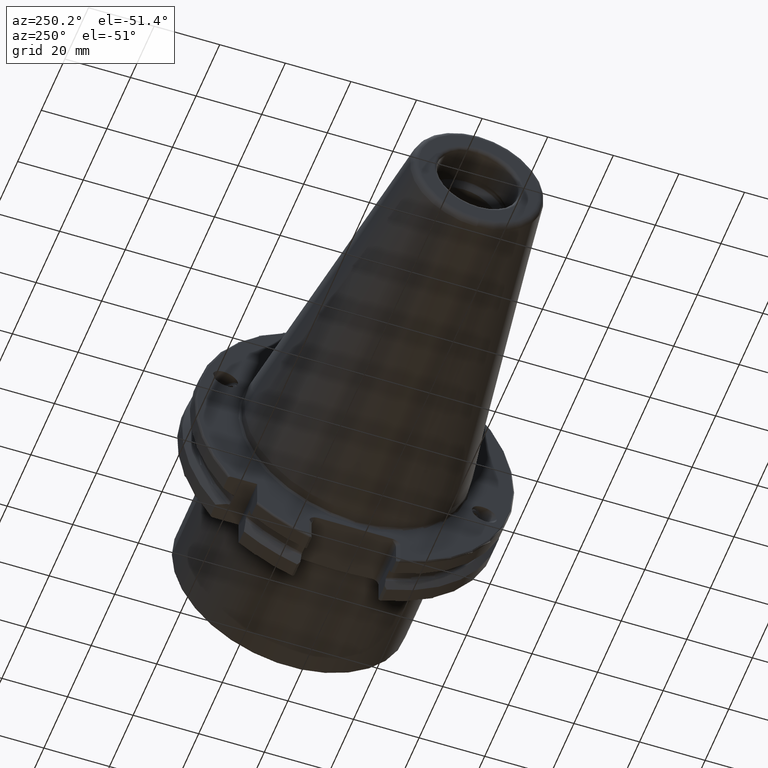
[diagram: clean part render]
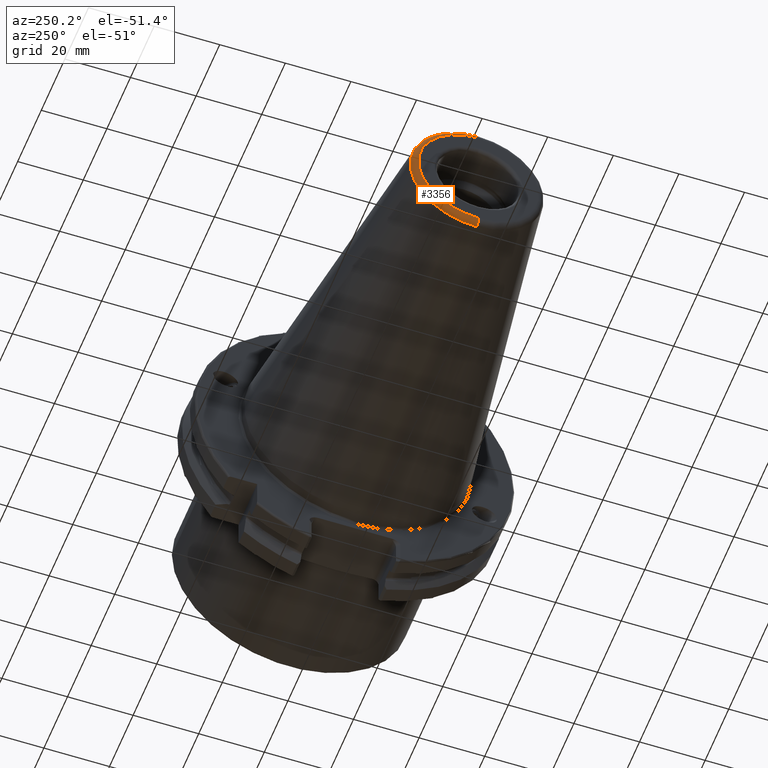
[diagram: same view with one face highlighted and labeled with its STEP entity id]
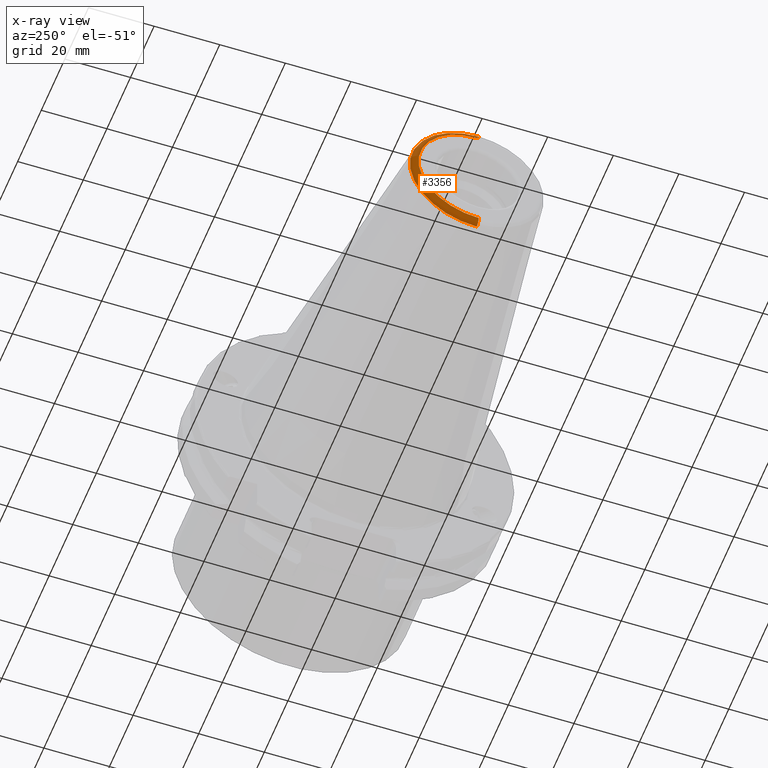
[diagram: x-ray of the same camera — body ghosted, the highlighted face saturated]
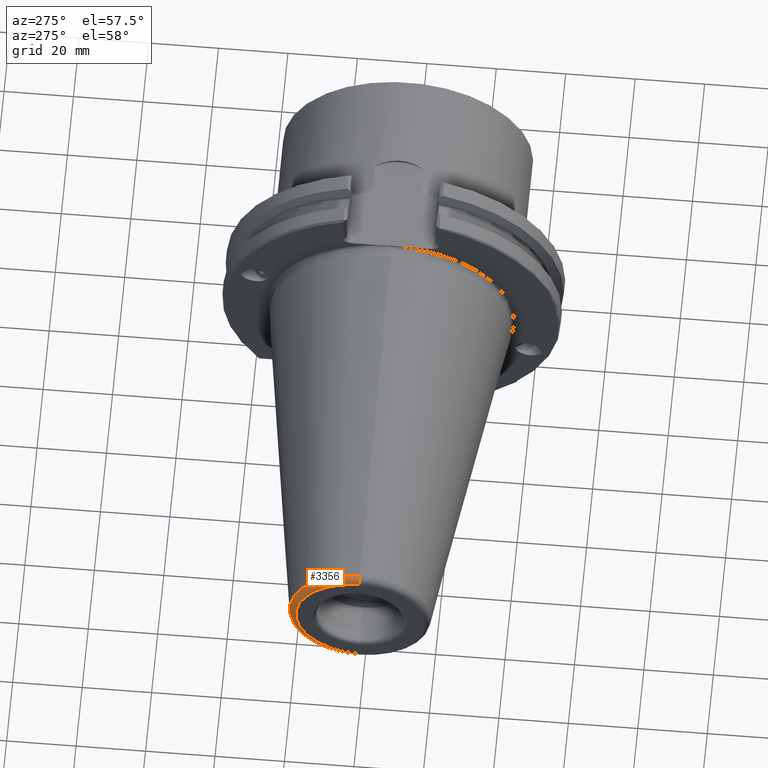
[diagram: same view with one face highlighted and labeled with its STEP entity id]
A machine part, auxiliary view. The second image highlights one B-rep face of the part: STEP entity #3356.
The next image is the same camera in x-ray: the body ghosted, the highlighted face saturated — about 0% of this face is hidden behind the body in this view.
A second angle (auxiliary view) of the same face is appended — the face is thin or edge-on in the first view.
In plain terms, the highlighted toroidal blend (fillet) surface has major radius 18.3788 mm and minor (blend) radius 2 mm.
Its self-contained STEP definition (entity closure, byte-faithful):
#1 = VERTEX_POINT ( 'NONE', #1920 ) ;
#641 = AXIS2_PLACEMENT_3D ( 'NONE', #5644, #5596, #5580 ) ;
#1067 = CARTESIAN_POINT ( 'NONE',  ( -99.59999999999999400, 2.250759312250011600E-015, -18.37884452739416500 ) ) ;
#1088 = FACE_OUTER_BOUND ( 'NONE', #3412, .T. ) ;
#1519 = DIRECTION ( 'NONE',  ( 0.0000000000000000000, -1.224646799147353900E-016, 1.000000000000000000 ) ) ;
#1920 = CARTESIAN_POINT ( 'NONE',  ( -99.88861378614343800, 0.0000000000000000000, 20.35791048952072300 ) ) ;
#2275 = VERTEX_POINT ( 'NONE', #2795 ) ;
#2589 = DIRECTION ( 'NONE',  ( 0.0000000000000000000, 0.0000000000000000000, 1.000000000000000000 ) ) ;
#2592 = AXIS2_PLACEMENT_3D ( 'NONE', #2690, #2669, #2589 ) ;
#2593 = CIRCLE ( 'NONE', #4370, 1.999999999999991300 ) ;
#2669 = DIRECTION ( 'NONE',  ( -1.000000000000000000, -0.0000000000000000000, -0.0000000000000000000 ) ) ;
#2690 = CARTESIAN_POINT ( 'NONE',  ( -101.5999999999999700, 0.0000000000000000000, 0.0000000000000000000 ) ) ;
#2780 = EDGE_CURVE ( 'NONE', #1, #2275, #4859, .T. ) ;
#2795 = CARTESIAN_POINT ( 'NONE',  ( -99.88861378614343800, 2.493124991831987900E-015, -20.35791048952072300 ) ) ;
#2897 = CIRCLE ( 'NONE', #4996, 1.999999999999991300 ) ;
#2968 = EDGE_CURVE ( 'NONE', #1, #5055, #2593, .T. ) ;
#2986 = CARTESIAN_POINT ( 'NONE',  ( -99.59999999999999400, 0.0000000000000000000, 0.0000000000000000000 ) ) ;
#3091 = DIRECTION ( 'NONE',  ( -1.000000000000000000, -0.0000000000000000000, -0.0000000000000000000 ) ) ;
#3278 = DIRECTION ( 'NONE',  ( 0.0000000000000000000, 0.0000000000000000000, 1.000000000000000000 ) ) ;
#3312 = VERTEX_POINT ( 'NONE', #3894 ) ;
#3356 = ADVANCED_FACE ( 'NONE', ( #1088 ), #4652, .T. ) ;
#3412 = EDGE_LOOP ( 'NONE', ( #5298, #5238, #5173, #5101 ) ) ;
#3894 = CARTESIAN_POINT ( 'NONE',  ( -101.5999999999999700, 2.371942152040999400E-015, -18.37884452739416500 ) ) ;
#3949 = EDGE_CURVE ( 'NONE', #5055, #3312, #5183, .T. ) ;
#4167 = CARTESIAN_POINT ( 'NONE',  ( -101.5999999999999700, 0.0000000000000000000, 18.37884452739416500 ) ) ;
#4313 = DIRECTION ( 'NONE',  ( -0.0000000000000000000, 1.000000000000000000, 1.224646799147353200E-016 ) ) ;
#4362 = DIRECTION ( 'NONE',  ( 0.0000000000000000000, 0.0000000000000000000, -1.000000000000000000 ) ) ;
#4370 = AXIS2_PLACEMENT_3D ( 'NONE', #4464, #4379, #4362 ) ;
#4379 = DIRECTION ( 'NONE',  ( 0.0000000000000000000, -1.000000000000000000, 0.0000000000000000000 ) ) ;
#4464 = CARTESIAN_POINT ( 'NONE',  ( -99.59999999999999400, 0.0000000000000000000, 18.37884452739416500 ) ) ;
#4652 = TOROIDAL_SURFACE ( 'NONE', #5270, 18.37884452739416500, 1.999999999999991300 ) ;
#4859 = CIRCLE ( 'NONE', #641, 20.35791048952072300 ) ;
#4996 = AXIS2_PLACEMENT_3D ( 'NONE', #1067, #4313, #1519 ) ;
#5055 = VERTEX_POINT ( 'NONE', #4167 ) ;
#5101 = ORIENTED_EDGE ( 'NONE', *, *, #2968, .F. ) ;
#5173 = ORIENTED_EDGE ( 'NONE', *, *, #3949, .F. ) ;
#5183 = CIRCLE ( 'NONE', #2592, 18.37884452739416500 ) ;
#5214 = EDGE_CURVE ( 'NONE', #2275, #3312, #2897, .T. ) ;
#5238 = ORIENTED_EDGE ( 'NONE', *, *, #5214, .T. ) ;
#5270 = AXIS2_PLACEMENT_3D ( 'NONE', #2986, #3091, #3278 ) ;
#5298 = ORIENTED_EDGE ( 'NONE', *, *, #2780, .T. ) ;
#5580 = DIRECTION ( 'NONE',  ( 0.0000000000000000000, 0.0000000000000000000, 1.000000000000000000 ) ) ;
#5596 = DIRECTION ( 'NONE',  ( -1.000000000000000000, -0.0000000000000000000, -0.0000000000000000000 ) ) ;
#5644 = CARTESIAN_POINT ( 'NONE',  ( -99.88861378614343800, 0.0000000000000000000, 0.0000000000000000000 ) ) ;